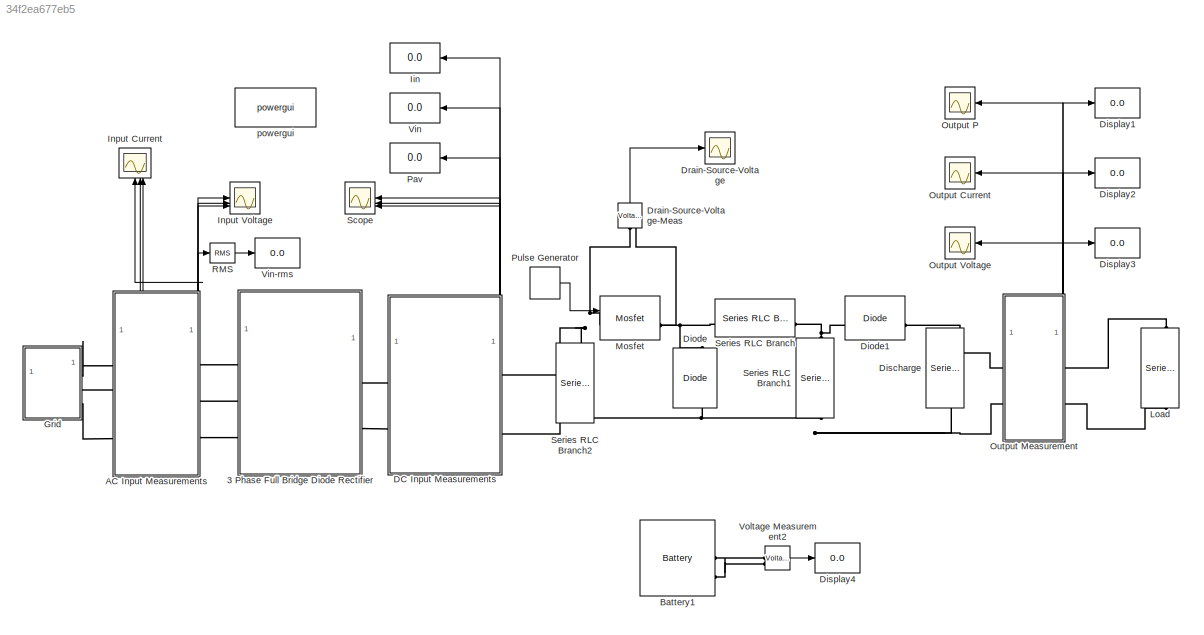
MODEL slx_34f2ea677eb5
KIND model
CONFIG AbsTol = auto
CONFIG EnableMultiTasking = off
CONFIG FixedStep = auto
CONFIG MaxStep = auto
CONFIG MinStep = auto
CONFIG RelTol = 1e-3
CONFIG SampleTimeConstraint = Unconstrained
CONFIG SolverName = VariableStepAuto
CONFIG StartTime = 0.0
CONFIG StopTime = 0.04
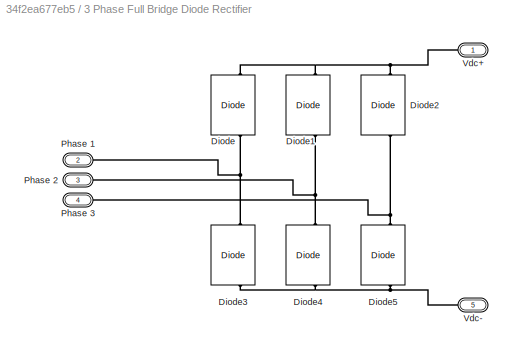
BLOCK [SubSystem] 3 Phase Full Bridge Diode Rectifier
BLOCK [Reference] 3 Phase Full Bridge Diode Rectifier/Diode  REF=spsDiodeLib/Diode
  LibrarySourceBlock = sps_lib/Power Electronics/Diode
  NameLocation = right
  SourceBlock = spsDiodeLib/Diode
  SourceType = Diode
BLOCK [Reference] 3 Phase Full Bridge Diode Rectifier/Diode1  REF=spsDiodeLib/Diode
  LibrarySourceBlock = sps_lib/Power Electronics/Diode
  NameLocation = right
  SourceBlock = spsDiodeLib/Diode
  SourceType = Diode
BLOCK [Reference] 3 Phase Full Bridge Diode Rectifier/Diode2  REF=spsDiodeLib/Diode
  LibrarySourceBlock = sps_lib/Power Electronics/Diode
  NameLocation = right
  SourceBlock = spsDiodeLib/Diode
  SourceType = Diode
BLOCK [Reference] 3 Phase Full Bridge Diode Rectifier/Diode3  REF=spsDiodeLib/Diode
  LibrarySourceBlock = sps_lib/Power Electronics/Diode
  NameLocation = right
  SourceBlock = spsDiodeLib/Diode
  SourceType = Diode
BLOCK [Reference] 3 Phase Full Bridge Diode Rectifier/Diode4  REF=spsDiodeLib/Diode
  LibrarySourceBlock = sps_lib/Power Electronics/Diode
  NameLocation = right
  SourceBlock = spsDiodeLib/Diode
  SourceType = Diode
BLOCK [Reference] 3 Phase Full Bridge Diode Rectifier/Diode5  REF=spsDiodeLib/Diode
  LibrarySourceBlock = sps_lib/Power Electronics/Diode
  NameLocation = right
  SourceBlock = spsDiodeLib/Diode
  SourceType = Diode
BLOCK [PMIOPort] 3 Phase Full Bridge Diode Rectifier/Phase 1
  Port = 2
  Side = Left
BLOCK [PMIOPort] 3 Phase Full Bridge Diode Rectifier/Phase 2
  Port = 3
  Side = Left
BLOCK [PMIOPort] 3 Phase Full Bridge Diode Rectifier/Phase 3
  Port = 4
  Side = Left
BLOCK [PMIOPort] 3 Phase Full Bridge Diode Rectifier/Vdc+
  NameLocation = top
  Side = Right
BLOCK [PMIOPort] 3 Phase Full Bridge Diode Rectifier/Vdc-
  NameLocation = top
  Port = 5
  Side = Right
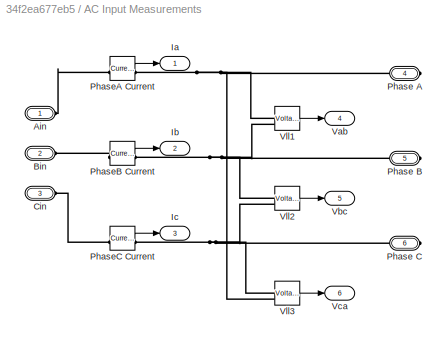
BLOCK [SubSystem] AC Input Measurements
  PortSchema = {"entries":[{"content":{"sides":[{"content":{"connectorIds":["LConn1","LConn2","LConn3"]},"type":"ConnectorPlacement.EquallySpacedRectSide","uuid":"04a5a0c8-76ab-4056-bfdd-b703a3d2aa28"},{"content":{"connectorIds":["RConn1","RConn2","RConn3"],"side":"RIGHT"},"type":"ConnectorPlacement.EquallySpacedRectSide","uuid":"3565172a-00f9-43c9-81c3-3e47c8c41d3a"},{"content":{"connectorIds":["Out1","Out2","O...<+448ch>
BLOCK [PMIOPort] AC Input Measurements/Ain
  Side = Left
BLOCK [PMIOPort] AC Input Measurements/Bin
  Port = 2
  Side = Left
BLOCK [PMIOPort] AC Input Measurements/Cin
  Port = 3
  Side = Left
BLOCK [Outport] AC Input Measurements/Ia
BLOCK [Outport] AC Input Measurements/Ib
  Port = 2
BLOCK [Outport] AC Input Measurements/Ic
  Port = 3
BLOCK [PMIOPort] AC Input Measurements/Phase A
  Port = 4
  Side = Right
BLOCK [PMIOPort] AC Input Measurements/Phase B
  Port = 5
  Side = Right
BLOCK [PMIOPort] AC Input Measurements/Phase C
  Port = 6
  Side = Right
BLOCK [Reference] AC Input Measurements/PhaseA Current  REF=spsCurrentMeasurementLib/Current Measurement
  LibrarySourceBlock = sps_lib/Sensors and Measurements/Current Measurement
  SourceBlock = spsCurrentMeasurementLib/Current Measurement
  SourceType = Current Measurement
  UserDataPersistent = on
BLOCK [Reference] AC Input Measurements/PhaseB Current  REF=spsCurrentMeasurementLib/Current Measurement
  LibrarySourceBlock = sps_lib/Sensors and Measurements/Current Measurement
  SourceBlock = spsCurrentMeasurementLib/Current Measurement
  SourceType = Current Measurement
  UserDataPersistent = on
BLOCK [Reference] AC Input Measurements/PhaseC Current  REF=spsCurrentMeasurementLib/Current Measurement
  LibrarySourceBlock = sps_lib/Sensors and Measurements/Current Measurement
  SourceBlock = spsCurrentMeasurementLib/Current Measurement
  SourceType = Current Measurement
  UserDataPersistent = on
BLOCK [Outport] AC Input Measurements/Vab
  Port = 4
BLOCK [Outport] AC Input Measurements/Vbc
  Port = 5
BLOCK [Outport] AC Input Measurements/Vca
  Port = 6
BLOCK [Reference] AC Input Measurements/Vll1  REF=spsVoltageMeasurementLib/Voltage Measurement
  LibrarySourceBlock = sps_lib/Sensors and Measurements/Voltage Measurement
  SourceBlock = spsVoltageMeasurementLib/Voltage Measurement
  SourceType = Voltage Measurement
  UserDataPersistent = on
BLOCK [Reference] AC Input Measurements/Vll2  REF=spsVoltageMeasurementLib/Voltage Measurement
  LibrarySourceBlock = sps_lib/Sensors and Measurements/Voltage Measurement
  SourceBlock = spsVoltageMeasurementLib/Voltage Measurement
  SourceType = Voltage Measurement
  UserDataPersistent = on
BLOCK [Reference] AC Input Measurements/Vll3  REF=spsVoltageMeasurementLib/Voltage Measurement
  LibrarySourceBlock = sps_lib/Sensors and Measurements/Voltage Measurement
  SourceBlock = spsVoltageMeasurementLib/Voltage Measurement
  SourceType = Voltage Measurement
  UserDataPersistent = on
BLOCK [Reference] Battery1  REF=spsBatteryLib/Battery
  LibrarySourceBlock = sps_lib/Sources/Battery
  SourceBlock = spsBatteryLib/Battery
  SourceType = Battery
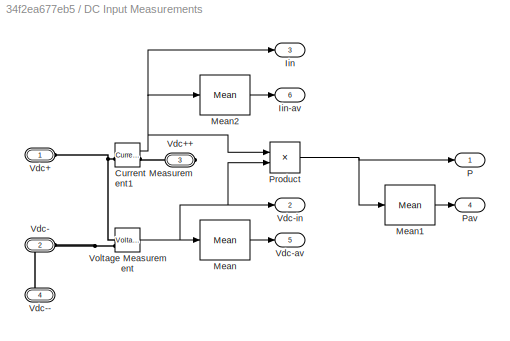
BLOCK [SubSystem] DC Input Measurements
  PortSchema = {"entries":[{"content":{"sides":[{"content":{"connectorIds":["LConn1","LConn2"]},"type":"ConnectorPlacement.EquallySpacedRectSide","uuid":"d21f3327-f92a-42ff-962f-d2a0482b5819"},{"content":{"connectorIds":["RConn1","RConn2"],"side":"RIGHT"},"type":"ConnectorPlacement.EquallySpacedRectSide","uuid":"4cc980a8-4b33-4409-8260-8c3cf4970e9e"},{"content":{"connectorIds":["Out1","Out2","Out3","Out4","Out5"...<+430ch>
BLOCK [Reference] DC Input Measurements/Current Measurement1  REF=spsCurrentMeasurementLib/Current Measurement
  LibrarySourceBlock = sps_lib/Sensors and Measurements/Current Measurement
  SourceBlock = spsCurrentMeasurementLib/Current Measurement
  SourceType = Current Measurement
  UserDataPersistent = on
BLOCK [Outport] DC Input Measurements/Iin
  Port = 3
BLOCK [Outport] DC Input Measurements/Iin-av
  Port = 6
BLOCK [Reference] DC Input Measurements/Mean  REF=spsMeanLib/Mean
  LibrarySourceBlock = sps_lib/Sensors and Measurements/Mean
  SourceBlock = spsMeanLib/Mean
  SourceType = Mean
BLOCK [Reference] DC Input Measurements/Mean1  REF=spsMeanLib/Mean
  LibrarySourceBlock = sps_lib/Sensors and Measurements/Mean
  SourceBlock = spsMeanLib/Mean
  SourceType = Mean
BLOCK [Reference] DC Input Measurements/Mean2  REF=spsMeanLib/Mean
  LibrarySourceBlock = sps_lib/Sensors and Measurements/Mean
  SourceBlock = spsMeanLib/Mean
  SourceType = Mean
BLOCK [Outport] DC Input Measurements/P
BLOCK [Outport] DC Input Measurements/Pav
  Port = 4
BLOCK [Product] DC Input Measurements/Product
BLOCK [PMIOPort] DC Input Measurements/Vdc+
  Side = Left
BLOCK [PMIOPort] DC Input Measurements/Vdc++
  Port = 3
  Side = Right
BLOCK [PMIOPort] DC Input Measurements/Vdc-
  Port = 2
  Side = Left
BLOCK [PMIOPort] DC Input Measurements/Vdc--
  Port = 4
  Side = Right
BLOCK [Outport] DC Input Measurements/Vdc-av
  Port = 5
BLOCK [Outport] DC Input Measurements/Vdc-in
  Port = 2
BLOCK [Reference] DC Input Measurements/Voltage Measurement  REF=spsVoltageMeasurementLib/Voltage Measurement
  LibrarySourceBlock = sps_lib/Sensors and Measurements/Voltage Measurement
  SourceBlock = spsVoltageMeasurementLib/Voltage Measurement
  SourceType = Voltage Measurement
  UserDataPersistent = on
BLOCK [Reference] Diode  REF=spsDiodeLib/Diode
  LibrarySourceBlock = sps_lib/Power Electronics/Diode
  NameLocation = right
  SourceBlock = spsDiodeLib/Diode
  SourceType = Diode
BLOCK [Reference] Diode1  REF=spsDiodeLib/Diode
  LibrarySourceBlock = sps_lib/Power Electronics/Diode
  SourceBlock = spsDiodeLib/Diode
  SourceType = Diode
BLOCK [Reference] Discharge  REF=spsSeriesRLCBranchLib/Series RLC Branch
  LibrarySourceBlock = sps_lib/Passives/Series RLC Branch
  NameLocation = left
  SourceBlock = spsSeriesRLCBranchLib/Series RLC Branch
  SourceType = Series RLC Branch
BLOCK [Display] Display1
  Decimation = 1
BLOCK [Display] Display2
  Decimation = 1
BLOCK [Display] Display3
  Decimation = 1
BLOCK [Display] Display4
  Decimation = 1
BLOCK [Scope] Drain-Source-Voltage
  Floating = off
  NumInputPorts = 1
  ScopeSpecificationString = Simulink.scopes.TimeScopeBlockCfg('CurrentConfiguration', extmgr.ConfigurationSet(extmgr.Configuration('Core','General UI',true),extmgr.Configuration('Core','Source UI',true),extmgr.Configuration('Sources','WiredSimulink',true,'DataLoggingVariableName','ScopeData3'),extmgr.Configuration('Visuals','Time Domain',true,'SerializedDisplays',{struct('MinYLimReal','-2.77158','MaxYLimReal','24.94424','YLa...<+1436ch>
BLOCK [Reference] Drain-Source-Voltage-Meas  REF=spsVoltageMeasurementLib/Voltage Measurement
  LibrarySourceBlock = sps_lib/Sensors and Measurements/Voltage Measurement
  NameLocation = right
  SourceBlock = spsVoltageMeasurementLib/Voltage Measurement
  SourceType = Voltage Measurement
  UserDataPersistent = on
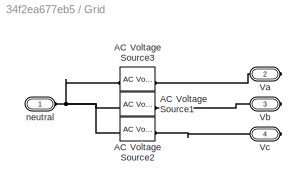
BLOCK [SubSystem] Grid
BLOCK [Reference] Grid/AC Voltage Source1  REF=spsACVoltageSourceLib/AC Voltage Source
  LibrarySourceBlock = sps_lib/Sources/AC Voltage Source
  NameLocation = left
  SourceBlock = spsACVoltageSourceLib/AC Voltage Source
  SourceType = AC Voltage Source
BLOCK [Reference] Grid/AC Voltage Source2  REF=spsACVoltageSourceLib/AC Voltage Source
  LibrarySourceBlock = sps_lib/Sources/AC Voltage Source
  NameLocation = left
  SourceBlock = spsACVoltageSourceLib/AC Voltage Source
  SourceType = AC Voltage Source
BLOCK [Reference] Grid/AC Voltage Source3  REF=spsACVoltageSourceLib/AC Voltage Source
  LibrarySourceBlock = sps_lib/Sources/AC Voltage Source
  NameLocation = left
  SourceBlock = spsACVoltageSourceLib/AC Voltage Source
  SourceType = AC Voltage Source
BLOCK [PMIOPort] Grid/Va
  Port = 2
  Side = Right
BLOCK [PMIOPort] Grid/Vb
  Port = 3
  Side = Right
BLOCK [PMIOPort] Grid/Vc
  Port = 4
  Side = Right
BLOCK [PMIOPort] Grid/neutral
  NameLocation = top
  Side = Left
BLOCK [Display] Iin
  Decimation = 1
  NameLocation = top
BLOCK [Scope] Input Current
  Floating = off
  NameLocation = right
  NumInputPorts = 3
  ScopeSpecificationString = Simulink.scopes.TimeScopeBlockCfg('CurrentConfiguration', extmgr.ConfigurationSet(extmgr.Configuration('Core','General UI',true),extmgr.Configuration('Core','Source UI',true),extmgr.Configuration('Sources','WiredSimulink',true,'DataLoggingVariableName','ScopeData1'),extmgr.Configuration('Visuals','Time Domain',true,'SerializedDisplays',{struct('MinYLimReal','-43.30127','MaxYLimReal','43.30127','YL...<+2920ch>
BLOCK [Scope] Input Voltage
  Floating = off
  NumInputPorts = 3
  ScopeSpecificationString = Simulink.scopes.TimeScopeBlockCfg('CurrentConfiguration', extmgr.ConfigurationSet(extmgr.Configuration('Core','General UI',true),extmgr.Configuration('Core','Source UI',true),extmgr.Configuration('Sources','WiredSimulink',true,'DataLoggingVariableName','ScopeData2'),extmgr.Configuration('Visuals','Time Domain',true,'SerializedDisplays',{struct('MinYLimReal','-43.30127','MaxYLimReal','43.30127','YL...<+1584ch>
BLOCK [Reference] Load  REF=spsSeriesRLCBranchLib/Series RLC Branch
  LibrarySourceBlock = sps_lib/Passives/Series RLC Branch
  NameLocation = left
  SourceBlock = spsSeriesRLCBranchLib/Series RLC Branch
  SourceType = Series RLC Branch
BLOCK [Reference] Mosfet  REF=spsMosfetLib/Mosfet
  LibrarySourceBlock = sps_lib/Power Electronics/Mosfet
  SourceBlock = spsMosfetLib/Mosfet
  SourceType = Mosfet
BLOCK [Scope] Output Current
  Floating = off
  NameLocation = top
  NumInputPorts = 1
  ScopeSpecificationString = Simulink.scopes.TimeScopeBlockCfg('CurrentConfiguration', extmgr.ConfigurationSet(extmgr.Configuration('Core','General UI',true),extmgr.Configuration('Core','Source UI',true),extmgr.Configuration('Sources','WiredSimulink',true,'DataLoggingVariableName','ScopeData1'),extmgr.Configuration('Visuals','Time Domain',true,'SerializedDisplays',{struct('MinYLimReal','9.28584','MaxYLimReal','10.61272','YLab...<+1429ch>
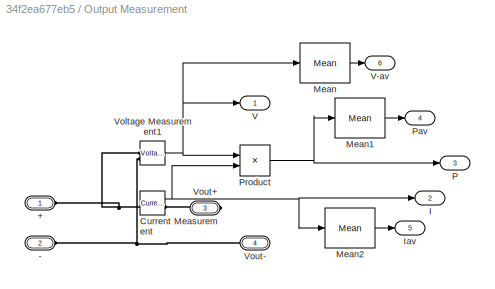
BLOCK [SubSystem] Output Measurement
  PortSchema = {"entries":[{"content":{"sides":[{"content":{"connectorIds":["LConn1","LConn2"]},"type":"ConnectorPlacement.EquallySpacedRectSide","uuid":"5134c9a7-91fc-4055-8b38-7fcc39efd9ae"},{"content":{"connectorIds":["RConn1","RConn2"],"side":"RIGHT"},"type":"ConnectorPlacement.EquallySpacedRectSide","uuid":"a0adcaf9-cd58-4f8e-859e-0ced41501c8a"},{"content":{"connectorIds":["Out1","Out2","Out3","Out4","Out5"...<+304ch>
BLOCK [PMIOPort] Output Measurement/+
  Side = Left
BLOCK [PMIOPort] Output Measurement/-
  Port = 2
  Side = Left
BLOCK [Reference] Output Measurement/Current Measurement  REF=spsCurrentMeasurementLib/Current Measurement
  LibrarySourceBlock = sps_lib/Sensors and Measurements/Current Measurement
  SourceBlock = spsCurrentMeasurementLib/Current Measurement
  SourceType = Current Measurement
  UserDataPersistent = on
BLOCK [Outport] Output Measurement/I
  Port = 2
BLOCK [Outport] Output Measurement/Iav
  Port = 5
BLOCK [Reference] Output Measurement/Mean  REF=spsMeanLib/Mean
  LibrarySourceBlock = sps_lib/Sensors and Measurements/Mean
  SourceBlock = spsMeanLib/Mean
  SourceType = Mean
BLOCK [Reference] Output Measurement/Mean1  REF=spsMeanLib/Mean
  LibrarySourceBlock = sps_lib/Sensors and Measurements/Mean
  SourceBlock = spsMeanLib/Mean
  SourceType = Mean
BLOCK [Reference] Output Measurement/Mean2  REF=spsMeanLib/Mean
  LibrarySourceBlock = sps_lib/Sensors and Measurements/Mean
  SourceBlock = spsMeanLib/Mean
  SourceType = Mean
BLOCK [Outport] Output Measurement/P
  Port = 3
BLOCK [Outport] Output Measurement/Pav
  Port = 4
BLOCK [Product] Output Measurement/Product
BLOCK [Outport] Output Measurement/V
BLOCK [Outport] Output Measurement/V-av
  Port = 6
BLOCK [Reference] Output Measurement/Voltage Measurement1  REF=spsVoltageMeasurementLib/Voltage Measurement
  LibrarySourceBlock = sps_lib/Sensors and Measurements/Voltage Measurement
  SourceBlock = spsVoltageMeasurementLib/Voltage Measurement
  SourceType = Voltage Measurement
  UserDataPersistent = on
BLOCK [PMIOPort] Output Measurement/Vout+
  Port = 3
  Side = Right
BLOCK [PMIOPort] Output Measurement/Vout-
  NameLocation = top
  Port = 4
  Side = Right
BLOCK [Scope] Output P
  Floating = off
  NameLocation = top
  NumInputPorts = 1
  ScopeSpecificationString = Simulink.scopes.TimeScopeBlockCfg('CurrentConfiguration', extmgr.ConfigurationSet(extmgr.Configuration('Core','General UI',true),extmgr.Configuration('Core','Source UI',true),extmgr.Configuration('Sources','WiredSimulink',true,'DataLoggingVariableName','ScopeData2'),extmgr.Configuration('Visuals','Time Domain',true,'SerializedDisplays',{struct('MinYLimReal','116.48407','MaxYLimReal','143.11988','Y...<+1466ch>
BLOCK [Scope] Output Voltage
  Floating = off
  NameLocation = top
  NumInputPorts = 1
  ScopeSpecificationString = Simulink.scopes.TimeScopeBlockCfg('CurrentConfiguration', extmgr.ConfigurationSet(extmgr.Configuration('Core','General UI',true),extmgr.Configuration('Core','Source UI',true),extmgr.Configuration('Sources','WiredSimulink',true),extmgr.Configuration('Visuals','Time Domain',true,'SerializedDisplays',{struct('MinYLimReal','9.01594','MaxYLimReal','11.49636','YLabelReal','','MinYLimMag','9.01594','MaxY...<+1415ch>
BLOCK [Display] Pav
  Decimation = 1
  NameLocation = top
BLOCK [DiscretePulseGenerator] Pulse Generator
  Period = 1e-5
  PulseType = Time based
  PulseWidth = 51.84
BLOCK [Reference] RMS  REF=spsRMSLib/RMS
  LibrarySourceBlock = sps_lib/Sensors and Measurements/RMS
  SourceBlock = spsRMSLib/RMS
  SourceType = RMS
BLOCK [Scope] Scope
  Floating = off
  NameLocation = top
  NumInputPorts = 3
  ScopeSpecificationString = Simulink.scopes.TimeScopeBlockCfg('CurrentConfiguration', extmgr.ConfigurationSet(extmgr.Configuration('Core','General UI',true),extmgr.Configuration('Core','Source UI',true),extmgr.Configuration('Sources','WiredSimulink',true,'DataLoggingVariableName','ScopeData1'),extmgr.Configuration('Visuals','Time Domain',true,'SerializedDisplays',{struct('MinYLimReal','-2209.45444','MaxYLimReal','19885.02659...<+2763ch>
BLOCK [Reference] Series RLC Branch  REF=spsSeriesRLCBranchLib/Series RLC Branch
  LibrarySourceBlock = sps_lib/Passives/Series RLC Branch
  SourceBlock = spsSeriesRLCBranchLib/Series RLC Branch
  SourceType = Series RLC Branch
BLOCK [Reference] Series RLC Branch1  REF=spsSeriesRLCBranchLib/Series RLC Branch
  LibrarySourceBlock = sps_lib/Passives/Series RLC Branch
  NameLocation = left
  SourceBlock = spsSeriesRLCBranchLib/Series RLC Branch
  SourceType = Series RLC Branch
BLOCK [Reference] Series RLC Branch2  REF=spsSeriesRLCBranchLib/Series RLC Branch
  LibrarySourceBlock = sps_lib/Passives/Series RLC Branch
  NameLocation = left
  SourceBlock = spsSeriesRLCBranchLib/Series RLC Branch
  SourceType = Series RLC Branch
BLOCK [Display] Vin
  Decimation = 1
  NameLocation = top
BLOCK [Display] Vin-rms
  Decimation = 1
BLOCK [Reference] Voltage Measurement2  REF=spsVoltageMeasurementLib/Voltage Measurement
  LibrarySourceBlock = sps_lib/Sensors and Measurements/Voltage Measurement
  SourceBlock = spsVoltageMeasurementLib/Voltage Measurement
  SourceType = Voltage Measurement
  UserDataPersistent = on
BLOCK [Reference] powergui  REF=sps_lib/powergui
  LibrarySourceBlock = sps_lib/powergui
  Priority = 1
  SourceBlock = sps_lib/powergui
  SourceType = PSB option menu block
LINE AC Input Measurements/PhaseA Current:1 -> AC Input Measurements/Ia:1
LINE AC Input Measurements/PhaseB Current:1 -> AC Input Measurements/Ib:1
LINE AC Input Measurements/PhaseC Current:1 -> AC Input Measurements/Ic:1
LINE AC Input Measurements/Vll1:1 -> AC Input Measurements/Vab:1
LINE AC Input Measurements/Vll2:1 -> AC Input Measurements/Vbc:1
LINE AC Input Measurements/Vll3:1 -> AC Input Measurements/Vca:1
LINE AC Input Measurements:1 -> Input Current:1
LINE AC Input Measurements:2 -> Input Current:2
LINE AC Input Measurements:3 -> Input Current:3
NET AC Input Measurements:4 -> Input Voltage:1, RMS:1
LINE AC Input Measurements:5 -> Input Voltage:2
LINE AC Input Measurements:6 -> Input Voltage:3
NET DC Input Measurements/Current Measurement1:1 -> DC Input Measurements/Iin:1, DC Input Measurements/Mean2:1, DC Input Measurements/Product:1
LINE DC Input Measurements/Mean1:1 -> DC Input Measurements/Pav:1
LINE DC Input Measurements/Mean2:1 -> DC Input Measurements/Iin-av:1
LINE DC Input Measurements/Mean:1 -> DC Input Measurements/Vdc-av:1
NET DC Input Measurements/Product:1 -> DC Input Measurements/Mean1:1, DC Input Measurements/P:1
NET DC Input Measurements/Voltage Measurement:1 -> DC Input Measurements/Mean:1, DC Input Measurements/Product:2, DC Input Measurements/Vdc-in:1
LINE DC Input Measurements:1 -> Scope:3
LINE DC Input Measurements:2 -> Scope:2
LINE DC Input Measurements:3 -> Scope:1
LINE DC Input Measurements:4 -> Pav:1
LINE DC Input Measurements:5 -> Vin:1
LINE DC Input Measurements:6 -> Iin:1
LINE Drain-Source-Voltage-Meas:1 -> Drain-Source-Voltage:1
NET Output Measurement/Current Measurement:1 -> Output Measurement/I:1, Output Measurement/Mean2:1, Output Measurement/Product:2
LINE Output Measurement/Mean1:1 -> Output Measurement/Pav:1
LINE Output Measurement/Mean2:1 -> Output Measurement/Iav:1
LINE Output Measurement/Mean:1 -> Output Measurement/V-av:1
NET Output Measurement/Product:1 -> Output Measurement/Mean1:1, Output Measurement/P:1
NET Output Measurement/Voltage Measurement1:1 -> Output Measurement/Mean:1, Output Measurement/Product:1, Output Measurement/V:1
LINE Output Measurement:1 -> Output Voltage:1
LINE Output Measurement:2 -> Output Current:1
LINE Output Measurement:3 -> Output P:1
LINE Output Measurement:4 -> Display1:1
LINE Output Measurement:5 -> Display2:1
LINE Output Measurement:6 -> Display3:1
LINE Pulse Generator:1 -> Mosfet:1
LINE RMS:1 -> Vin-rms:1
LINE Voltage Measurement2:1 -> Display4:1
PNET net1: 3 Phase Full Bridge Diode Rectifier/Diode1:LConn1 -- 3 Phase Full Bridge Diode Rectifier/Diode4:RConn1 -- 3 Phase Full Bridge Diode Rectifier/Phase 2:RConn1
PNET net2: 3 Phase Full Bridge Diode Rectifier/Diode1:RConn1 -- 3 Phase Full Bridge Diode Rectifier/Diode2:RConn1 -- 3 Phase Full Bridge Diode Rectifier/Diode:RConn1 -- 3 Phase Full Bridge Diode Rectifier/Vdc+:RConn1
PNET net3: 3 Phase Full Bridge Diode Rectifier/Diode2:LConn1 -- 3 Phase Full Bridge Diode Rectifier/Diode5:RConn1 -- 3 Phase Full Bridge Diode Rectifier/Phase 3:RConn1
PNET net4: 3 Phase Full Bridge Diode Rectifier/Diode3:LConn1 -- 3 Phase Full Bridge Diode Rectifier/Diode4:LConn1 -- 3 Phase Full Bridge Diode Rectifier/Diode5:LConn1 -- 3 Phase Full Bridge Diode Rectifier/Vdc-:RConn1
PNET net5: 3 Phase Full Bridge Diode Rectifier/Diode3:RConn1 -- 3 Phase Full Bridge Diode Rectifier/Diode:LConn1 -- 3 Phase Full Bridge Diode Rectifier/Phase 1:RConn1
PLINE 3 Phase Full Bridge Diode Rectifier:LConn1 -- AC Input Measurements:RConn1
PLINE 3 Phase Full Bridge Diode Rectifier:LConn2 -- AC Input Measurements:RConn2
PLINE 3 Phase Full Bridge Diode Rectifier:LConn3 -- AC Input Measurements:RConn3
PLINE 3 Phase Full Bridge Diode Rectifier:RConn1 -- DC Input Measurements:LConn1
PLINE 3 Phase Full Bridge Diode Rectifier:RConn2 -- DC Input Measurements:LConn2
PLINE AC Input Measurements/Ain:RConn1 -- AC Input Measurements/PhaseA Current:LConn1
PLINE AC Input Measurements/Bin:RConn1 -- AC Input Measurements/PhaseB Current:LConn1
PLINE AC Input Measurements/Cin:RConn1 -- AC Input Measurements/PhaseC Current:LConn1
PNET net6: AC Input Measurements/Phase A:RConn1 -- AC Input Measurements/PhaseA Current:RConn1 -- AC Input Measurements/Vll1:LConn1 -- AC Input Measurements/Vll3:LConn2
PNET net7: AC Input Measurements/Phase B:RConn1 -- AC Input Measurements/PhaseB Current:RConn1 -- AC Input Measurements/Vll1:LConn2 -- AC Input Measurements/Vll2:LConn1
PNET net8: AC Input Measurements/Phase C:RConn1 -- AC Input Measurements/PhaseC Current:RConn1 -- AC Input Measurements/Vll2:LConn2 -- AC Input Measurements/Vll3:LConn1
PLINE AC Input Measurements:LConn1 -- Grid:RConn1
PLINE AC Input Measurements:LConn2 -- Grid:RConn2
PLINE AC Input Measurements:LConn3 -- Grid:RConn3
PLINE Battery1:LConn1 -- Voltage Measurement2:LConn1
PLINE Battery1:LConn2 -- Voltage Measurement2:LConn2
PNET net9: DC Input Measurements/Current Measurement1:LConn1 -- DC Input Measurements/Vdc+:RConn1 -- DC Input Measurements/Voltage Measurement:LConn1
PLINE DC Input Measurements/Current Measurement1:RConn1 -- DC Input Measurements/Vdc++:RConn1
PNET net10: DC Input Measurements/Vdc--:RConn1 -- DC Input Measurements/Vdc-:RConn1 -- DC Input Measurements/Voltage Measurement:LConn2
PNET net11: DC Input Measurements:RConn1 -- Drain-Source-Voltage-Meas:LConn1 -- Mosfet:LConn1 -- Series RLC Branch2:LConn1
PNET net12: DC Input Measurements:RConn2 -- Diode:LConn1 -- Discharge:RConn1 -- Output Measurement:LConn2 -- Series RLC Branch1:RConn1 -- Series RLC Branch2:RConn1
PNET net13: Diode1:LConn1 -- Series RLC Branch1:LConn1 -- Series RLC Branch:RConn1
PNET net14: Diode1:RConn1 -- Discharge:LConn1 -- Output Measurement:LConn1
PNET net15: Diode:RConn1 -- Drain-Source-Voltage-Meas:LConn2 -- Mosfet:RConn1 -- Series RLC Branch:LConn1
PNET net16: Grid/AC Voltage Source1:LConn1 -- Grid/AC Voltage Source2:LConn1 -- Grid/AC Voltage Source3:LConn1 -- Grid/neutral:RConn1
PLINE Grid/AC Voltage Source1:RConn1 -- Grid/Vb:RConn1
PLINE Grid/AC Voltage Source2:RConn1 -- Grid/Vc:RConn1
PLINE Grid/AC Voltage Source3:RConn1 -- Grid/Va:RConn1
PLINE Load:LConn1 -- Output Measurement:RConn1
PLINE Load:RConn1 -- Output Measurement:RConn2
PNET net17: Output Measurement/+:RConn1 -- Output Measurement/Current Measurement:LConn1 -- Output Measurement/Voltage Measurement1:LConn1
PNET net18: Output Measurement/-:RConn1 -- Output Measurement/Voltage Measurement1:LConn2 -- Output Measurement/Vout-:RConn1
PLINE Output Measurement/Current Measurement:RConn1 -- Output Measurement/Vout+:RConn1
note: NET lines group one-source signal fan-out (src -> all destinations, sorted); 1:1 wires keep LINE; PNET lines group multi-terminal physical nets as a canonical sorted terminal list (undirected conserving connections); 2-terminal nets keep the pairwise PLINE form
